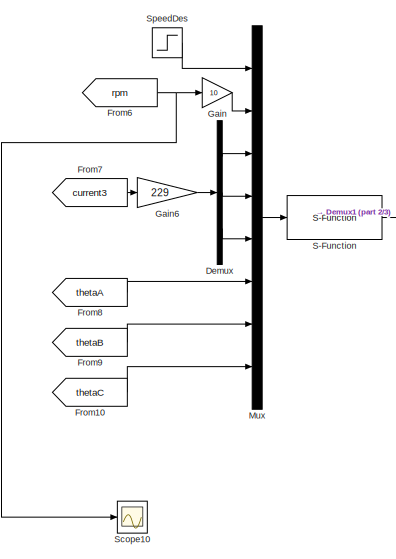
[diagram: root canvas - part 1/3, top left region]
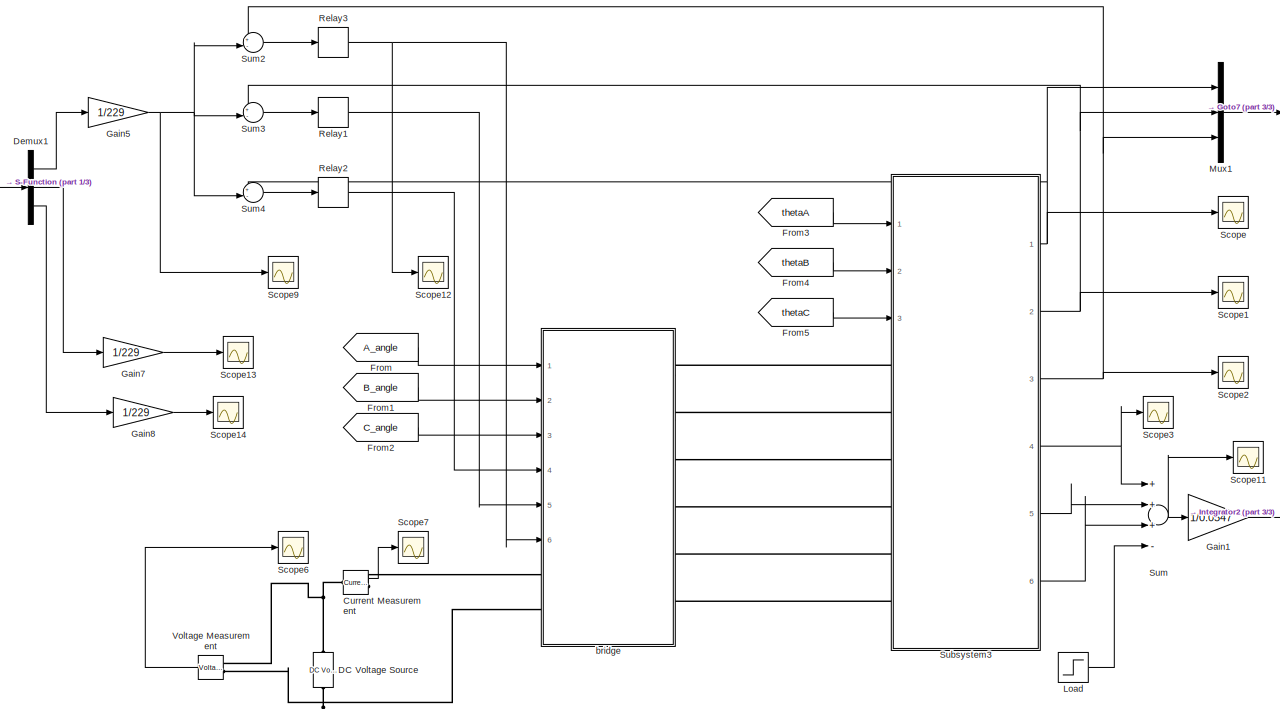
[diagram: root canvas - part 2/3, central region]
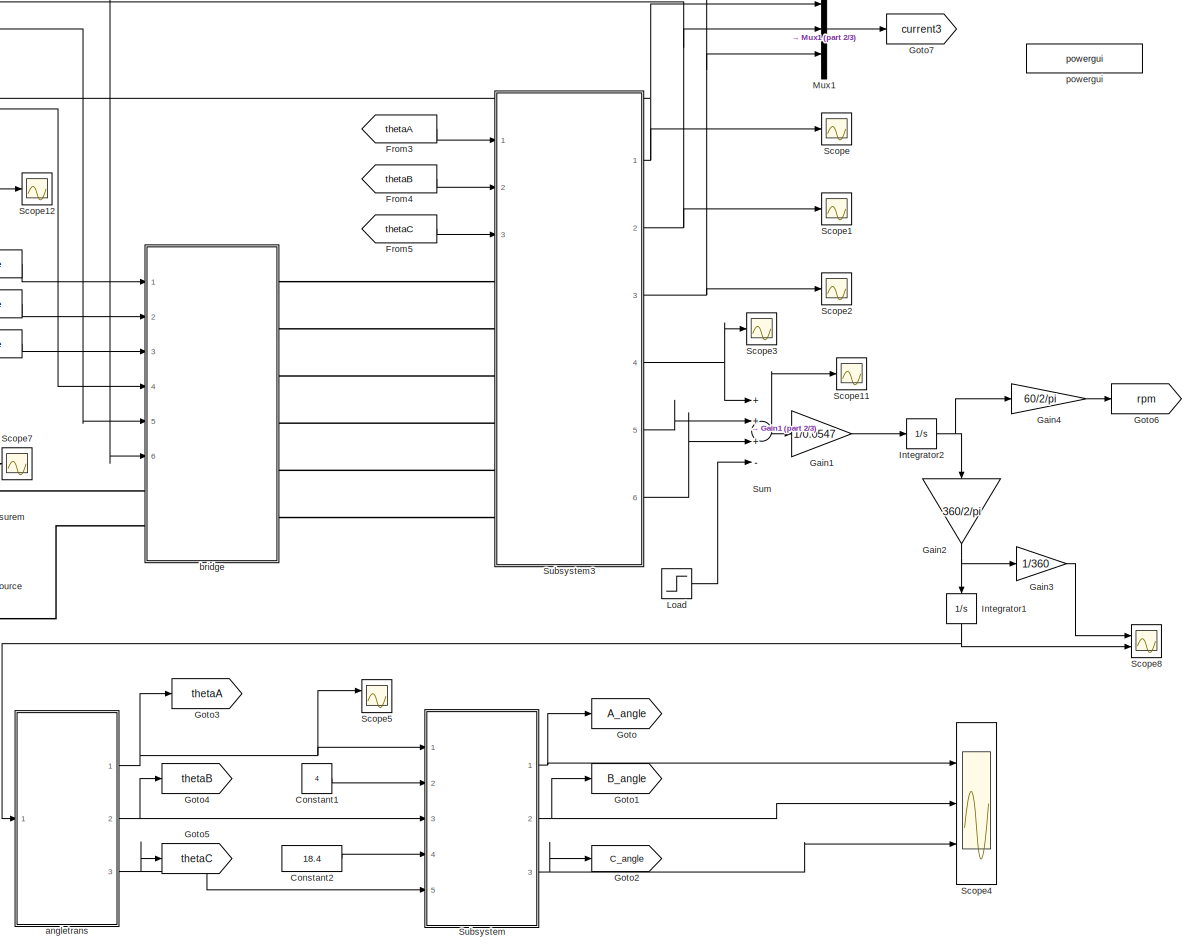
[diagram: root canvas - part 3/3, right side, full height]
MODEL slx_5ed39cbfea9d
KIND model
CONFIG InitFcn = Res=1.5\nL_0=0.001;
BLOCK [Constant] Constant1
  Value = 4
BLOCK [Constant] Constant2
  Value = 18.4
BLOCK [Reference] Current Measurement  REF=powerlib/Measurements/Current Measurement
  OutputType = Complex
  PSBequivalent = 0
  PhasorSimulation = off
  Ports = [0, 1, 0, 0, 0, 1, 1]
  SourceBlock = powerlib/Measurements/Current Measurement
  SourceType = Current Measurement
BLOCK [Reference] DC Voltage Source  REF=powerlib/Electrical
Sources/DC Voltage Source
  Amplitude = 208
  Measurements = None
  Ports = [0, 0, 0, 0, 0, 1, 1]
  SourceBlock = powerlib/Electrical\nSources/DC Voltage Source
  SourceType = DC Voltage Source
BLOCK [Demux] Demux
  DisplayOption = bar
  Outputs = 3
  Ports = [1, 3]
BLOCK [Demux] Demux1
  DisplayOption = bar
  Outputs = 3
  Ports = [1, 3]
BLOCK [From] From
  GotoTag = A_angle
BLOCK [From] From1
  GotoTag = B_angle
BLOCK [From] From10
  GotoTag = thetaC
BLOCK [From] From2
  GotoTag = C_angle
BLOCK [From] From3
  GotoTag = thetaA
BLOCK [From] From4
  GotoTag = thetaB
BLOCK [From] From5
  GotoTag = thetaC
BLOCK [From] From6
  GotoTag = rpm
BLOCK [From] From7
  GotoTag = current3
BLOCK [From] From8
  GotoTag = thetaA
BLOCK [From] From9
  GotoTag = thetaB
BLOCK [Gain] Gain
  Gain = 10
  OutDataTypeStr = Inherit: Inherit via internal rule
  ParamDataTypeStr = Inherit: Inherit via internal rule
  SaturateOnIntegerOverflow = off
BLOCK [Gain] Gain1
  Gain = 1/0.0547
  OutDataTypeStr = Inherit: Inherit via internal rule
  ParamDataTypeStr = Inherit: Inherit via internal rule
  SaturateOnIntegerOverflow = off
BLOCK [Gain] Gain2
  Gain = 360/2/pi
  OutDataTypeStr = Inherit: Inherit via internal rule
  ParamDataTypeStr = Inherit: Inherit via internal rule
  SaturateOnIntegerOverflow = off
BLOCK [Gain] Gain3
  Gain = 1/360
  OutDataTypeStr = Inherit: Inherit via internal rule
  ParamDataTypeStr = Inherit: Inherit via internal rule
  SaturateOnIntegerOverflow = off
BLOCK [Gain] Gain4
  Gain = 60/2/pi
  OutDataTypeStr = Inherit: Inherit via internal rule
  ParamDataTypeStr = Inherit: Inherit via internal rule
  SaturateOnIntegerOverflow = off
BLOCK [Gain] Gain5
  Gain = 1/229
  OutDataTypeStr = Inherit: Inherit via internal rule
  ParamDataTypeStr = Inherit: Inherit via internal rule
  SaturateOnIntegerOverflow = off
BLOCK [Gain] Gain6
  Gain = 229
  OutDataTypeStr = Inherit: Inherit via internal rule
  ParamDataTypeStr = Inherit: Inherit via internal rule
  SaturateOnIntegerOverflow = off
BLOCK [Gain] Gain7
  Gain = 1/229
  OutDataTypeStr = Inherit: Inherit via internal rule
  ParamDataTypeStr = Inherit: Inherit via internal rule
  SaturateOnIntegerOverflow = off
BLOCK [Gain] Gain8
  Gain = 1/229
  OutDataTypeStr = Inherit: Inherit via internal rule
  ParamDataTypeStr = Inherit: Inherit via internal rule
  SaturateOnIntegerOverflow = off
BLOCK [Goto] Goto
  GotoTag = A_angle
BLOCK [Goto] Goto1
  GotoTag = B_angle
BLOCK [Goto] Goto2
  GotoTag = C_angle
BLOCK [Goto] Goto3
  GotoTag = thetaA
BLOCK [Goto] Goto4
  GotoTag = thetaB
BLOCK [Goto] Goto5
  GotoTag = thetaC
BLOCK [Goto] Goto6
  GotoTag = rpm
BLOCK [Goto] Goto7
  GotoTag = current3
BLOCK [Integrator] Integrator1
  InitialCondition = 3.5
  Ports = [1, 1]
BLOCK [Integrator] Integrator2
  InitialCondition = 50
  Ports = [1, 1]
BLOCK [Step] Load
  Before = 1
  SampleTime = 0
  Time = 0.2
BLOCK [Mux] Mux
  DisplayOption = bar
  Inputs = 8
  Ports = [8, 1]
BLOCK [Mux] Mux1
  DisplayOption = bar
  Inputs = 3
  Ports = [3, 1]
BLOCK [Relay] Relay1
  InputProcessing = Elements as channels (sample based)
  OffOutputValue = 1
  OffSwitchValue = -0.001
  OnOutputValue = 0
  OnSwitchValue = 0.1
BLOCK [Relay] Relay2
  InputProcessing = Elements as channels (sample based)
  OffOutputValue = 1
  OffSwitchValue = -0.001
  OnOutputValue = 0
  OnSwitchValue = 0.1
BLOCK [Relay] Relay3
  InputProcessing = Elements as channels (sample based)
  OffOutputValue = 1
  OffSwitchValue = -0.001
  OnOutputValue = 0
  OnSwitchValue = 0.1
BLOCK [S-Function] S-Function
  EnableBusSupport = off
  FunctionName = pifun7a3
  Ports = [1, 1]
BLOCK [Scope] Scope
  DataFormat = StructureWithTime
  Floating = off
  LimitDataPoints = off
  NumInputPorts = 1
  Ports = [1]
  SampleTime = 0
  ShowLegends = off
  TimeRange = 2
  YMax = 2.25
  YMin = 0
BLOCK [Scope] Scope1
  DataFormat = StructureWithTime
  Floating = off
  LimitDataPoints = off
  NumInputPorts = 1
  Ports = [1]
  SampleTime = 0
  SaveName = ScopeData1
  ShowLegends = off
  YMax = 0.0022575
  YMin = 0.0022425
BLOCK [Scope] Scope10
  DataFormat = StructureWithTime
  Floating = off
  LimitDataPoints = off
  NumInputPorts = 1
  Ports = [1]
  SampleInput = on
  SampleTime = 1/9600
  SaveName = speed
  SaveToWorkspace = on
  ShowLegends = off
  TimeRange = 2
  YMax = 602
  YMin = 601.575
BLOCK [Scope] Scope11
  DataFormat = StructureWithTime
  Floating = off
  LimitDataPoints = off
  NumInputPorts = 1
  Ports = [1]
  SampleTime = 0
  SaveName = ScopeData9
  SaveToWorkspace = on
  ShowLegends = off
  TimeRange = 2
  YMax = -0.99985
  YMin = -1.00037
BLOCK [Scope] Scope12
  DataFormat = StructureWithTime
  Floating = off
  LimitDataPoints = off
  NumInputPorts = 1
  Ports = [1]
  SampleTime = 0
  SaveName = ScopeData10
  ShowLegends = off
  TimeRange = 2
  YMax = 1
  YMin = 1
BLOCK [Scope] Scope13
  DataFormat = StructureWithTime
  Floating = off
  LimitDataPoints = off
  NumInputPorts = 1
  Ports = [1]
  SampleInput = on
  SampleTime = 1/9600
  SaveName = speed1
  SaveToWorkspace = on
  ShowLegends = off
  TimeRange = 2
  YMax = 602
  YMin = 601.575
BLOCK [Scope] Scope14
  DataFormat = StructureWithTime
  Floating = off
  LimitDataPoints = off
  NumInputPorts = 1
  Ports = [1]
  SampleInput = on
  SampleTime = 1/9600
  SaveName = speed2
  SaveToWorkspace = on
  ShowLegends = off
  TimeRange = 2
  YMax = 602
  YMin = 601.575
BLOCK [Scope] Scope2
  DataFormat = StructureWithTime
  Floating = off
  LimitDataPoints = off
  NumInputPorts = 1
  Ports = [1]
  SampleTime = 0
  SaveName = ScopeData2
  ShowLegends = off
  YMax = 1.75
  YMin = 0
BLOCK [Scope] Scope3
  DataFormat = StructureWithTime
  Floating = off
  LimitDataPoints = off
  NumInputPorts = 1
  Ports = [1]
  SampleTime = 0
  SaveName = ScopeData3
  SaveToWorkspace = on
  ShowLegends = off
  TimeRange = 2
  YMax = 0
  YMin = -4.5e-06
BLOCK [Scope] Scope4
  DataFormat = StructureWithTime
  Floating = off
  LimitDataPoints = off
  NumInputPorts = 3
  Ports = [3]
  SampleTime = 0
  SaveName = ScopeData5
  ShowLegends = off
  TimeRange = 0.0001268631901574406
  YMax = 1.05~1~1
  YMin = 0.95~-1~-1
  ZoomMode = xonly
BLOCK [Scope] Scope5
  DataFormat = StructureWithTime
  Floating = off
  LimitDataPoints = off
  NumInputPorts = 2
  Ports = [2]
  SampleTime = 0
  SaveName = ScopeData7
  SaveToWorkspace = on
  ShowLegends = off
  YMax = 45~1
  YMin = 0~-1
  ZoomMode = xonly
BLOCK [Scope] Scope6
  DataFormat = StructureWithTime
  Floating = off
  LimitDataPoints = off
  NumInputPorts = 1
  Ports = [1]
  SampleTime = 0
  SaveName = ScopeData8
  ShowLegends = off
  YMax = 41.5
  YMin = 39
BLOCK [Scope] Scope7
  DataFormat = StructureWithTime
  Floating = off
  LimitDataPoints = off
  NumInputPorts = 1
  Ports = [1]
  SampleTime = 0
  SaveName = ScopeData12
  ShowLegends = off
  YMax = 2
  YMin = -1.75
BLOCK [Scope] Scope8
  DataFormat = StructureWithTime
  Floating = off
  LimitDataPoints = off
  NumInputPorts = 2
  Ports = [2]
  SampleTime = 0
  SaveName = ScopeData16
  SaveToWorkspace = on
  ShowLegends = off
  YMax = 1.65~13.5
  YMin = 1.2~10
BLOCK [Scope] Scope9
  DataFormat = StructureWithTime
  Floating = off
  LimitDataPoints = off
  NumInputPorts = 1
  Ports = [1]
  SampleTime = 0
  SaveName = ScopeData4
  ShowLegends = off
  TimeRange = 2
  YMax = 0.85
  YMin = 0.755
BLOCK [Step] SpeedDes
  After = 0
  Before = 6000
  SampleTime = 0
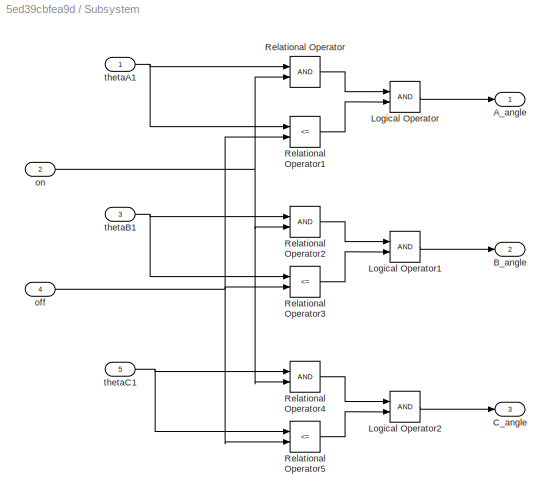
BLOCK [SubSystem] Subsystem
  Ports = [5, 3]
  RequestExecContextInheritance = off
BLOCK [Outport] Subsystem/A_angle
  IconDisplay = Port number
BLOCK [Outport] Subsystem/B_angle
  IconDisplay = Port number
  Port = 2
BLOCK [Outport] Subsystem/C_angle
  IconDisplay = Port number
  Port = 3
BLOCK [Logic] Subsystem/Logical Operator
  AllPortsSameDT = off
  OutDataTypeStr = boolean
  Ports = [2, 1]
BLOCK [Logic] Subsystem/Logical Operator1
  AllPortsSameDT = off
  OutDataTypeStr = boolean
  Ports = [2, 1]
BLOCK [Logic] Subsystem/Logical Operator2
  AllPortsSameDT = off
  OutDataTypeStr = boolean
  Ports = [2, 1]
BLOCK [RelationalOperator] Subsystem/Relational Operator
  InputSameDT = off
  OutDataTypeStr = boolean
  Ports = [2, 1]
BLOCK [RelationalOperator] Subsystem/Relational Operator1
  InputSameDT = off
  Operator = <=
  OutDataTypeStr = boolean
  Ports = [2, 1]
BLOCK [RelationalOperator] Subsystem/Relational Operator2
  InputSameDT = off
  OutDataTypeStr = boolean
  Ports = [2, 1]
BLOCK [RelationalOperator] Subsystem/Relational Operator3
  InputSameDT = off
  Operator = <=
  OutDataTypeStr = boolean
  Ports = [2, 1]
BLOCK [RelationalOperator] Subsystem/Relational Operator4
  InputSameDT = off
  OutDataTypeStr = boolean
  Ports = [2, 1]
BLOCK [RelationalOperator] Subsystem/Relational Operator5
  InputSameDT = off
  Operator = <=
  OutDataTypeStr = boolean
  Ports = [2, 1]
BLOCK [Inport] Subsystem/off
  IconDisplay = Port number
  Port = 4
BLOCK [Inport] Subsystem/on
  IconDisplay = Port number
  Port = 2
BLOCK [Inport] Subsystem/thetaA1
  IconDisplay = Port number
BLOCK [Inport] Subsystem/thetaB1
  IconDisplay = Port number
  Port = 3
BLOCK [Inport] Subsystem/thetaC1
  IconDisplay = Port number
  Port = 5
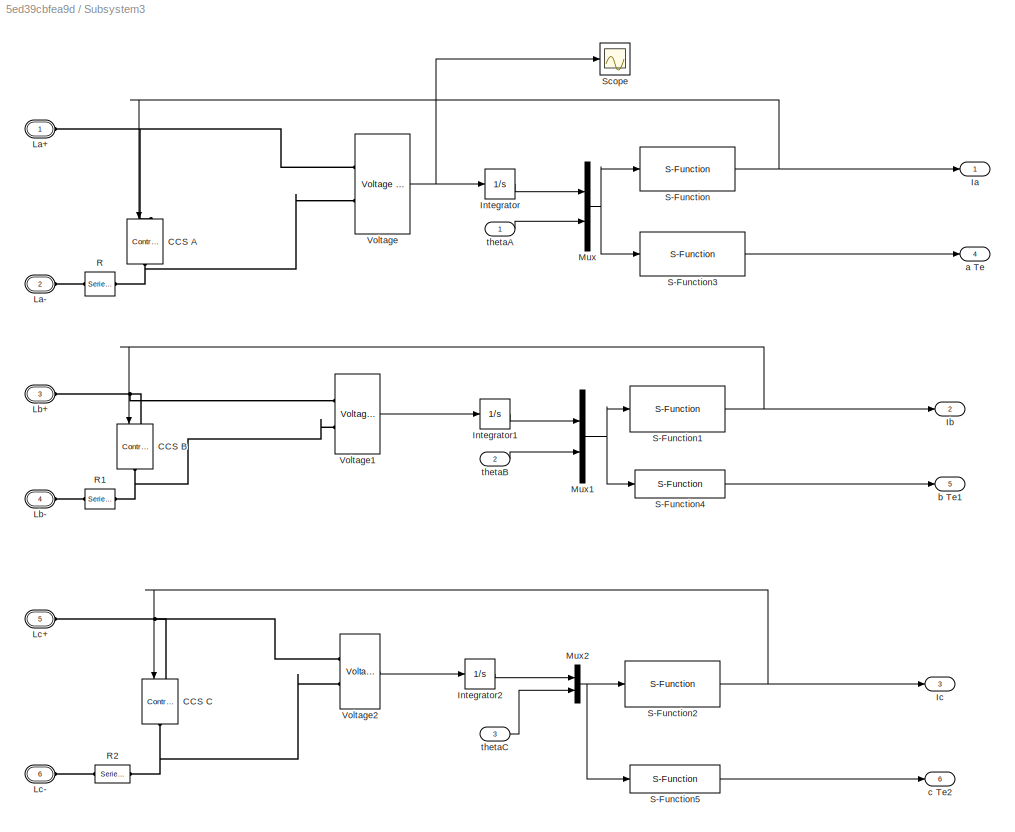
BLOCK [SubSystem] Subsystem3
  Ports = [3, 6, 0, 0, 0, 6]
  RequestExecContextInheritance = off
BLOCK [Reference] Subsystem3/CCS A  REF=powerlib/Electrical
Sources/Controlled Current Source
  Amplitude = 0
  Frequency = 0
  Initialize = on
  Measurements = None
  Phase = 0
  Ports = [1, 0, 0, 0, 0, 1, 1]
  SourceBlock = powerlib/Electrical\nSources/Controlled Current Source
  SourceType = Controlled Current Source
  Source_Type = AC
BLOCK [Reference] Subsystem3/CCS B  REF=powerlib/Electrical
Sources/Controlled Current Source
  Amplitude = 0
  Frequency = 0
  Initialize = on
  Measurements = None
  Phase = 0
  Ports = [1, 0, 0, 0, 0, 1, 1]
  SourceBlock = powerlib/Electrical\nSources/Controlled Current Source
  SourceType = Controlled Current Source
  Source_Type = AC
BLOCK [Reference] Subsystem3/CCS C  REF=powerlib/Electrical
Sources/Controlled Current Source
  Amplitude = 0
  Frequency = 0
  Initialize = on
  Measurements = None
  Phase = 0
  Ports = [1, 0, 0, 0, 0, 1, 1]
  SourceBlock = powerlib/Electrical\nSources/Controlled Current Source
  SourceType = Controlled Current Source
  Source_Type = AC
BLOCK [Outport] Subsystem3/Ia
  IconDisplay = Port number
BLOCK [Outport] Subsystem3/Ib
  IconDisplay = Port number
  Port = 2
BLOCK [Outport] Subsystem3/Ic
  IconDisplay = Port number
  Port = 3
BLOCK [Integrator] Subsystem3/Integrator
  LimitOutput = on
  LowerSaturationLimit = 0
  Ports = [1, 1]
BLOCK [Integrator] Subsystem3/Integrator1
  LimitOutput = on
  LowerSaturationLimit = 0
  Ports = [1, 1]
BLOCK [Integrator] Subsystem3/Integrator2
  LimitOutput = on
  LowerSaturationLimit = 0
  Ports = [1, 1]
BLOCK [PMIOPort] Subsystem3/La+
  Port = 1
  Side = Left
  Tag = PMCPort
BLOCK [PMIOPort] Subsystem3/La-
  Port = 2
  Side = Left
  Tag = PMCPort
BLOCK [PMIOPort] Subsystem3/Lb+
  Port = 3
  Side = Left
  Tag = PMCPort
BLOCK [PMIOPort] Subsystem3/Lb-
  Port = 4
  Side = Left
  Tag = PMCPort
BLOCK [PMIOPort] Subsystem3/Lc+
  Port = 5
  Side = Left
  Tag = PMCPort
BLOCK [PMIOPort] Subsystem3/Lc-
  Port = 6
  Side = Left
  Tag = PMCPort
BLOCK [Mux] Subsystem3/Mux
  DisplayOption = bar
  Inputs = 2
  Ports = [2, 1]
BLOCK [Mux] Subsystem3/Mux1
  DisplayOption = bar
  Inputs = 2
  Ports = [2, 1]
BLOCK [Mux] Subsystem3/Mux2
  DisplayOption = bar
  Inputs = 2
  Ports = [2, 1]
BLOCK [Reference] Subsystem3/R  REF=powerlib/Elements/Series RLC Branch
  BranchType = R
  Capacitance = 1.0
  Inductance = L_0
  InitialCurrent = 0
  InitialVoltage = 0
  LConnTagsString = __new0
  Measurements = None
  Ports = [0, 0, 0, 0, 0, 1, 1]
  RConnTagsString = __new0
  Resistance = Res
  SetiL0 = off
  Setx0 = off
  SourceBlock = powerlib/Elements/Series RLC Branch
  SourceType = Series RLC Branch
BLOCK [Reference] Subsystem3/R1  REF=powerlib/Elements/Series RLC Branch
  BranchType = R
  Capacitance = 1.0
  Inductance = L_0
  InitialCurrent = 0
  InitialVoltage = 0
  LConnTagsString = __new0
  Measurements = None
  Ports = [0, 0, 0, 0, 0, 1, 1]
  RConnTagsString = __new0
  Resistance = Res
  SetiL0 = off
  Setx0 = off
  SourceBlock = powerlib/Elements/Series RLC Branch
  SourceType = Series RLC Branch
BLOCK [Reference] Subsystem3/R2  REF=powerlib/Elements/Series RLC Branch
  BranchType = R
  Capacitance = 1.0
  Inductance = L_0
  InitialCurrent = 0
  InitialVoltage = 0
  LConnTagsString = __new0
  Measurements = None
  Ports = [0, 0, 0, 0, 0, 1, 1]
  RConnTagsString = __new0
  Resistance = Res
  SetiL0 = off
  Setx0 = off
  SourceBlock = powerlib/Elements/Series RLC Branch
  SourceType = Series RLC Branch
BLOCK [S-Function] Subsystem3/S-Function
  EnableBusSupport = off
  FunctionName = my_sfunction7a
  Ports = [1, 1]
BLOCK [S-Function] Subsystem3/S-Function1
  EnableBusSupport = off
  FunctionName = my_sfunction7a
  Ports = [1, 1]
BLOCK [S-Function] Subsystem3/S-Function2
  EnableBusSupport = off
  FunctionName = my_sfunction7a
  Ports = [1, 1]
BLOCK [S-Function] Subsystem3/S-Function3
  EnableBusSupport = off
  FunctionName = my_sfunction7ate
  Ports = [1, 1]
BLOCK [S-Function] Subsystem3/S-Function4
  EnableBusSupport = off
  FunctionName = my_sfunction7ate
  Ports = [1, 1]
BLOCK [S-Function] Subsystem3/S-Function5
  EnableBusSupport = off
  FunctionName = my_sfunction7ate
  Ports = [1, 1]
BLOCK [Scope] Subsystem3/Scope
  DataFormat = StructureWithTime
  Floating = off
  LimitDataPoints = off
  NumInputPorts = 1
  Ports = [1]
  SampleTime = 0
  SaveName = ScopeData11
  ShowLegends = off
  TimeRange = 2
  YMax = 0.001065
  YMin = 0.00099
BLOCK [Reference] Subsystem3/Voltage  REF=powerlib/Measurements/Voltage Measurement
  OutputType = Complex
  PSBequivalent = 0
  PhasorSimulation = off
  Ports = [0, 1, 0, 0, 0, 2]
  SourceBlock = powerlib/Measurements/Voltage Measurement
  SourceType = Voltage Measurement
BLOCK [Reference] Subsystem3/Voltage1  REF=powerlib/Measurements/Voltage Measurement
  OutputType = Complex
  PSBequivalent = 0
  PhasorSimulation = off
  Ports = [0, 1, 0, 0, 0, 2]
  SourceBlock = powerlib/Measurements/Voltage Measurement
  SourceType = Voltage Measurement
BLOCK [Reference] Subsystem3/Voltage2  REF=powerlib/Measurements/Voltage Measurement
  OutputType = Complex
  PSBequivalent = 0
  PhasorSimulation = off
  Ports = [0, 1, 0, 0, 0, 2]
  SourceBlock = powerlib/Measurements/Voltage Measurement
  SourceType = Voltage Measurement
BLOCK [Outport] Subsystem3/a Te
  IconDisplay = Port number
  Port = 4
BLOCK [Outport] Subsystem3/b Te1
  IconDisplay = Port number
  Port = 5
BLOCK [Outport] Subsystem3/c Te2
  IconDisplay = Port number
  Port = 6
BLOCK [Inport] Subsystem3/thetaA
  IconDisplay = Port number
BLOCK [Inport] Subsystem3/thetaB
  IconDisplay = Port number
  Port = 2
BLOCK [Inport] Subsystem3/thetaC
  IconDisplay = Port number
  Port = 3
BLOCK [Sum] Sum
  InputSameDT = off
  Inputs = +++-
  OutDataTypeStr = Inherit: Inherit via internal rule
  Ports = [4, 1]
  SaturateOnIntegerOverflow = off
BLOCK [Sum] Sum2
  IconShape = round
  InputSameDT = off
  Inputs = +-|
  OutDataTypeStr = Inherit: Inherit via internal rule
  Ports = [2, 1]
  SaturateOnIntegerOverflow = off
BLOCK [Sum] Sum3
  IconShape = round
  InputSameDT = off
  Inputs = +-|
  OutDataTypeStr = Inherit: Inherit via internal rule
  Ports = [2, 1]
  SaturateOnIntegerOverflow = off
BLOCK [Sum] Sum4
  IconShape = round
  InputSameDT = off
  Inputs = +-|
  OutDataTypeStr = Inherit: Inherit via internal rule
  Ports = [2, 1]
  SaturateOnIntegerOverflow = off
BLOCK [Reference] Voltage Measurement  REF=powerlib/Measurements/Voltage Measurement
  OutputType = Complex
  PSBequivalent = 0
  PhasorSimulation = off
  Ports = [0, 1, 0, 0, 0, 2]
  SourceBlock = powerlib/Measurements/Voltage Measurement
  SourceType = Voltage Measurement
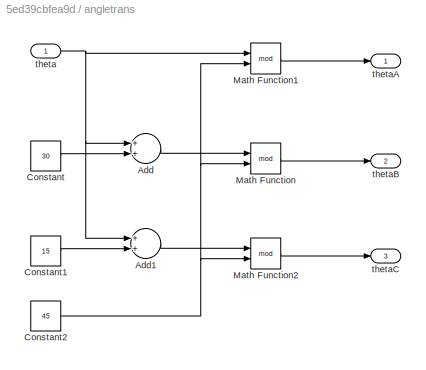
BLOCK [SubSystem] angletrans
  Ports = [1, 3]
  RequestExecContextInheritance = off
BLOCK [Sum] angletrans/Add
  InputSameDT = off
  OutDataTypeStr = Inherit: Inherit via internal rule
  Ports = [2, 1]
  SaturateOnIntegerOverflow = off
BLOCK [Sum] angletrans/Add1
  InputSameDT = off
  OutDataTypeStr = Inherit: Inherit via internal rule
  Ports = [2, 1]
  SaturateOnIntegerOverflow = off
BLOCK [Constant] angletrans/Constant
  Value = 30
BLOCK [Constant] angletrans/Constant1
  Value = 15
BLOCK [Constant] angletrans/Constant2
  Value = 45
BLOCK [Math] angletrans/Math Function
  Operator = mod
  Ports = [2, 1]
BLOCK [Math] angletrans/Math Function1
  Operator = mod
  Ports = [2, 1]
BLOCK [Math] angletrans/Math Function2
  Operator = mod
  Ports = [2, 1]
BLOCK [Inport] angletrans/theta
  IconDisplay = Port number
BLOCK [Outport] angletrans/thetaA
  IconDisplay = Port number
BLOCK [Outport] angletrans/thetaB
  IconDisplay = Port number
  Port = 2
BLOCK [Outport] angletrans/thetaC
  IconDisplay = Port number
  Port = 3
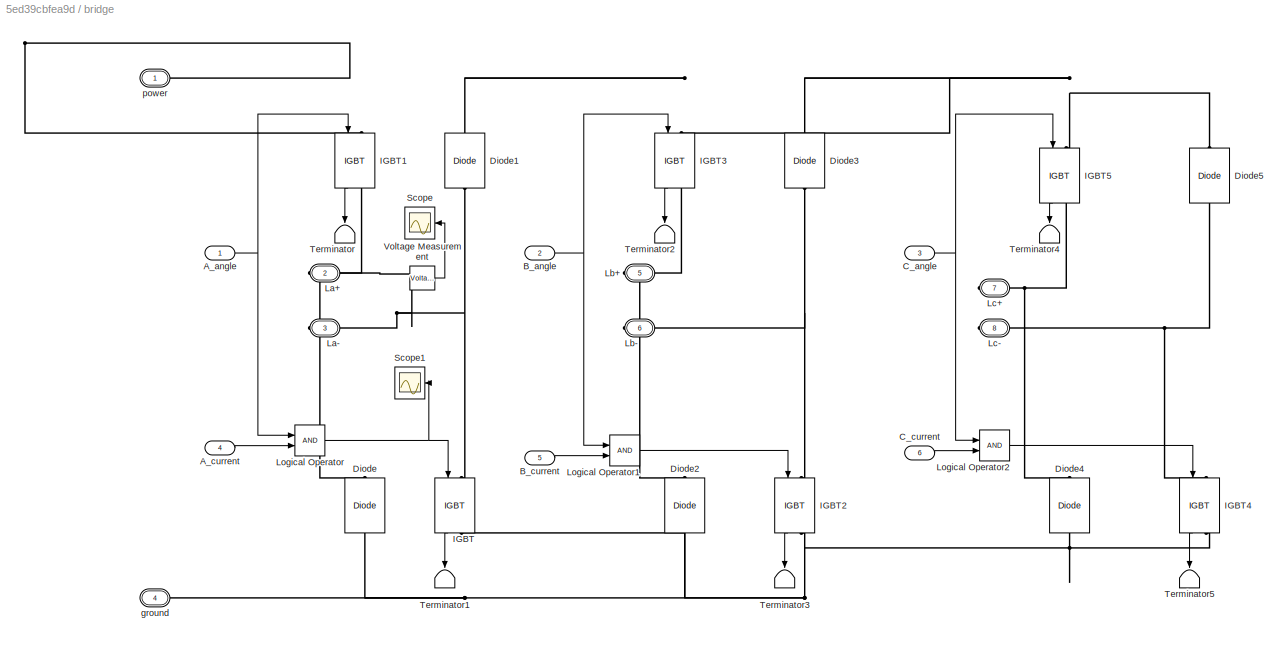
BLOCK [SubSystem] bridge
  Ports = [6, 0, 0, 0, 0, 2, 6]
  RequestExecContextInheritance = off
BLOCK [Inport] bridge/A_angle
  IconDisplay = Port number
BLOCK [Inport] bridge/A_current
  IconDisplay = Port number
  Port = 4
BLOCK [Inport] bridge/B_angle
  IconDisplay = Port number
  Port = 2
BLOCK [Inport] bridge/B_current
  IconDisplay = Port number
  Port = 5
BLOCK [Inport] bridge/C_angle
  IconDisplay = Port number
  Port = 3
BLOCK [Inport] bridge/C_current
  IconDisplay = Port number
  Port = 6
BLOCK [Reference] bridge/Diode  REF=powerlib/Power
Electronics/Diode
  Cs = 250e-9
  IC = 0
  Lon = 0
  Measurements = off
  Ports = [0, 0, 0, 0, 0, 1, 1]
  Ron = 0.001
  Rs = 500
  SourceBlock = powerlib/Power\nElectronics/Diode
  SourceType = Diode
  UseSnubber = off
  Vf = 0.8
BLOCK [Reference] bridge/Diode1  REF=powerlib/Power
Electronics/Diode
  Cs = 250e-9
  IC = 0
  Lon = 0
  Measurements = off
  Ports = [0, 0, 0, 0, 0, 1, 1]
  Ron = 0.001
  Rs = 500
  SourceBlock = powerlib/Power\nElectronics/Diode
  SourceType = Diode
  UseSnubber = off
  Vf = 0.8
BLOCK [Reference] bridge/Diode2  REF=powerlib/Power
Electronics/Diode
  Cs = 250e-9
  IC = 0
  Lon = 0
  Measurements = off
  Ports = [0, 0, 0, 0, 0, 1, 1]
  Ron = 0.001
  Rs = 500
  SourceBlock = powerlib/Power\nElectronics/Diode
  SourceType = Diode
  UseSnubber = off
  Vf = 0.8
BLOCK [Reference] bridge/Diode3  REF=powerlib/Power
Electronics/Diode
  Cs = 250e-9
  IC = 0
  Lon = 0
  Measurements = off
  Ports = [0, 0, 0, 0, 0, 1, 1]
  Ron = 0.001
  Rs = 500
  SourceBlock = powerlib/Power\nElectronics/Diode
  SourceType = Diode
  UseSnubber = off
  Vf = 0.8
BLOCK [Reference] bridge/Diode4  REF=powerlib/Power
Electronics/Diode
  Cs = 250e-9
  IC = 0
  Lon = 0
  Measurements = off
  Ports = [0, 0, 0, 0, 0, 1, 1]
  Ron = 0.001
  Rs = 500
  SourceBlock = powerlib/Power\nElectronics/Diode
  SourceType = Diode
  UseSnubber = off
  Vf = 0.8
BLOCK [Reference] bridge/Diode5  REF=powerlib/Power
Electronics/Diode
  Cs = 250e-9
  IC = 0
  Lon = 0
  Measurements = off
  Ports = [0, 0, 0, 0, 0, 1, 1]
  Ron = 0.001
  Rs = 500
  SourceBlock = powerlib/Power\nElectronics/Diode
  SourceType = Diode
  UseSnubber = off
  Vf = 0.8
BLOCK [Reference] bridge/IGBT  REF=powerlib/Power
Electronics/IGBT
  Cs = inf
  IC = 0
  Lon = 0
  Measurements = on
  Ports = [1, 1, 0, 0, 0, 1, 1]
  Ron = 0.001
  Rs = 1e5
  SourceBlock = powerlib/Power\nElectronics/IGBT
  SourceType = IGBT
  Tf = 1e-6
  Tt = 2e-6
  Vf = 1
BLOCK [Reference] bridge/IGBT1  REF=powerlib/Power
Electronics/IGBT
  Cs = inf
  IC = 0
  Lon = 0
  Measurements = on
  Ports = [1, 1, 0, 0, 0, 1, 1]
  Ron = 0.001
  Rs = 1e5
  SourceBlock = powerlib/Power\nElectronics/IGBT
  SourceType = IGBT
  Tf = 1e-6
  Tt = 2e-6
  Vf = 1
BLOCK [Reference] bridge/IGBT2  REF=powerlib/Power
Electronics/IGBT
  Cs = inf
  IC = 0
  Lon = 0
  Measurements = on
  Ports = [1, 1, 0, 0, 0, 1, 1]
  Ron = 0.001
  Rs = 1e5
  SourceBlock = powerlib/Power\nElectronics/IGBT
  SourceType = IGBT
  Tf = 1e-6
  Tt = 2e-6
  Vf = 1
BLOCK [Reference] bridge/IGBT3  REF=powerlib/Power
Electronics/IGBT
  Cs = inf
  IC = 0
  Lon = 0
  Measurements = on
  Ports = [1, 1, 0, 0, 0, 1, 1]
  Ron = 0.001
  Rs = 1e5
  SourceBlock = powerlib/Power\nElectronics/IGBT
  SourceType = IGBT
  Tf = 1e-6
  Tt = 2e-6
  Vf = 1
BLOCK [Reference] bridge/IGBT4  REF=powerlib/Power
Electronics/IGBT
  Cs = inf
  IC = 0
  Lon = 0
  Measurements = on
  Ports = [1, 1, 0, 0, 0, 1, 1]
  Ron = 0.001
  Rs = 1e5
  SourceBlock = powerlib/Power\nElectronics/IGBT
  SourceType = IGBT
  Tf = 1e-6
  Tt = 2e-6
  Vf = 1
BLOCK [Reference] bridge/IGBT5  REF=powerlib/Power
Electronics/IGBT
  Cs = inf
  IC = 0
  Lon = 0
  Measurements = on
  Ports = [1, 1, 0, 0, 0, 1, 1]
  Ron = 0.001
  Rs = 1e5
  SourceBlock = powerlib/Power\nElectronics/IGBT
  SourceType = IGBT
  Tf = 1e-6
  Tt = 2e-6
  Vf = 1
BLOCK [PMIOPort] bridge/La+
  Port = 2
  Side = Right
  Tag = PMCPort
BLOCK [PMIOPort] bridge/La-
  Port = 3
  Side = Right
  Tag = PMCPort
BLOCK [PMIOPort] bridge/Lb+
  Port = 5
  Side = Right
  Tag = PMCPort
BLOCK [PMIOPort] bridge/Lb-
  Port = 6
  Side = Right
  Tag = PMCPort
BLOCK [PMIOPort] bridge/Lc+
  Port = 7
  Side = Right
  Tag = PMCPort
BLOCK [PMIOPort] bridge/Lc-
  Port = 8
  Side = Right
  Tag = PMCPort
BLOCK [Logic] bridge/Logical Operator
  AllPortsSameDT = off
  OutDataTypeStr = boolean
  Ports = [2, 1]
BLOCK [Logic] bridge/Logical Operator1
  AllPortsSameDT = off
  OutDataTypeStr = boolean
  Ports = [2, 1]
BLOCK [Logic] bridge/Logical Operator2
  AllPortsSameDT = off
  OutDataTypeStr = boolean
  Ports = [2, 1]
BLOCK [Scope] bridge/Scope
  DataFormat = StructureWithTime
  Floating = off
  NumInputPorts = 1
  Ports = [1]
  SampleTime = 0
  SaveName = ScopeData6
  ShowLegends = off
  YMax = 250
  YMin = -250
BLOCK [Scope] bridge/Scope1
  DataFormat = StructureWithTime
  Floating = off
  NumInputPorts = 1
  Ports = [1]
  SampleTime = 0
  SaveName = ScopeData13
  ShowLegends = off
  YMax = 57.2
  YMin = 57.14
BLOCK [Terminator] bridge/Terminator
BLOCK [Terminator] bridge/Terminator1
BLOCK [Terminator] bridge/Terminator2
BLOCK [Terminator] bridge/Terminator3
BLOCK [Terminator] bridge/Terminator4
BLOCK [Terminator] bridge/Terminator5
BLOCK [Reference] bridge/Voltage Measurement  REF=powerlib/Measurements/Voltage Measurement
  OutputType = Complex
  PSBequivalent = 0
  PhasorSimulation = off
  Ports = [0, 1, 0, 0, 0, 2]
  SourceBlock = powerlib/Measurements/Voltage Measurement
  SourceType = Voltage Measurement
BLOCK [PMIOPort] bridge/ground
  Port = 4
  Side = Left
  Tag = PMCPort
BLOCK [PMIOPort] bridge/power
  Port = 1
  Side = Left
  Tag = PMCPort
BLOCK [Reference] powergui  REF=powerlib/powergui
  DisableRonSwitches = off
  DisableSnubberDevices = off
  DisableVfSwitches = off
  DisplayEquations = off
  DisplayStyle = 1
  EnableUseOfTLC = off
  ErrMax = 1e-4
  Frange = [0:2:500]
  FreqAxis = off
  FunctionMessages = off
  HookPort = off
  Interpol = off
  Iterations = 50
  MaxFrequency = 1000
  Pbase = 100e6
  Ports = []
  Priority = 1
  ResistiveCurrentMeasurement = off
  RestoreLinks = warning
  RmsSteady = 1
  SPID = off
  SampleTime = 50e-6
  ShowGrid = off
  SolverType = Tustin
  SourceBlock = powerlib/powergui
  SourceType = PSB option menu block
  StartTime = 0.0
  SwTol = 0
  Ts = 0
  UnitsV = kV
  UnitsW = MW
  UserDataPersistent = on
  Xlog = on
  Ylog = off
  ZoomFFT = on
  cycles = 1
  display = off
  echomessages = off
  frequency = 60
  frequencyindice = 0
  frequencyindicesteady = 1
  fundamental = 60
  methode = off
  save = off
  structure = 0
  variable = ZData
  x0status = blocks
LINE Constant1:1 -> Subsystem:2
LINE Constant2:1 -> Subsystem:4
LINE Current Measurement:1 -> Scope7:1
LINE Demux1:1 -> Gain5:1
LINE Demux1:2 -> Gain7:1
LINE Demux1:3 -> Gain8:1
LINE Demux:1 -> Mux:3
LINE Demux:2 -> Mux:4
LINE Demux:3 -> Mux:5
LINE From10:1 -> Mux:8
LINE From1:1 -> bridge:2
LINE From2:1 -> bridge:3
LINE From3:1 -> Subsystem3:1
LINE From4:1 -> Subsystem3:2
LINE From5:1 -> Subsystem3:3
NET From6:1 -> Gain:1, Scope10:1
LINE From7:1 -> Gain6:1
LINE From8:1 -> Mux:6
LINE From9:1 -> Mux:7
LINE From:1 -> bridge:1
LINE Gain1:1 -> Integrator2:1
NET Gain2:1 -> Gain3:1, Integrator1:1
LINE Gain3:1 -> Scope8:1
LINE Gain4:1 -> Goto6:1
NET Gain5:1 -> Scope9:1, Sum2:2, Sum3:2, Sum4:2
LINE Gain6:1 -> Demux:1
LINE Gain7:1 -> Scope13:1
LINE Gain8:1 -> Scope14:1
LINE Gain:1 -> Mux:2
NET Integrator1:1 -> Scope8:2, angletrans:1
NET Integrator2:1 -> Gain2:1, Gain4:1
LINE Load:1 -> Sum:4
LINE Mux1:1 -> Goto7:1
LINE Mux:1 -> S-Function:1
LINE Relay1:1 -> bridge:5
LINE Relay2:1 -> bridge:4
NET Relay3:1 -> Scope12:1, bridge:6
LINE S-Function:1 -> Demux1:1
LINE SpeedDes:1 -> Mux:1
LINE Subsystem/Logical Operator1:1 -> Subsystem/B_angle:1
LINE Subsystem/Logical Operator2:1 -> Subsystem/C_angle:1
LINE Subsystem/Logical Operator:1 -> Subsystem/A_angle:1
LINE Subsystem/Relational Operator1:1 -> Subsystem/Logical Operator:2
LINE Subsystem/Relational Operator2:1 -> Subsystem/Logical Operator1:1
LINE Subsystem/Relational Operator3:1 -> Subsystem/Logical Operator1:2
LINE Subsystem/Relational Operator4:1 -> Subsystem/Logical Operator2:1
LINE Subsystem/Relational Operator5:1 -> Subsystem/Logical Operator2:2
LINE Subsystem/Relational Operator:1 -> Subsystem/Logical Operator:1
NET Subsystem/off:1 -> Subsystem/Relational Operator1:2, Subsystem/Relational Operator3:2, Subsystem/Relational Operator5:2
NET Subsystem/on:1 -> Subsystem/Relational Operator2:2, Subsystem/Relational Operator4:2, Subsystem/Relational Operator:2
NET Subsystem/thetaA1:1 -> Subsystem/Relational Operator1:1, Subsystem/Relational Operator:1
NET Subsystem/thetaB1:1 -> Subsystem/Relational Operator2:1, Subsystem/Relational Operator3:1
NET Subsystem/thetaC1:1 -> Subsystem/Relational Operator4:1, Subsystem/Relational Operator5:1
LINE Subsystem3/Integrator1:1 -> Subsystem3/Mux1:1
LINE Subsystem3/Integrator2:1 -> Subsystem3/Mux2:1
LINE Subsystem3/Integrator:1 -> Subsystem3/Mux:1
NET Subsystem3/Mux1:1 -> Subsystem3/S-Function1:1, Subsystem3/S-Function4:1
NET Subsystem3/Mux2:1 -> Subsystem3/S-Function2:1, Subsystem3/S-Function5:1
NET Subsystem3/Mux:1 -> Subsystem3/S-Function3:1, Subsystem3/S-Function:1
NET Subsystem3/S-Function1:1 -> Subsystem3/CCS B:1, Subsystem3/Ib:1
NET Subsystem3/S-Function2:1 -> Subsystem3/CCS C:1, Subsystem3/Ic:1
LINE Subsystem3/S-Function3:1 -> Subsystem3/a Te:1
LINE Subsystem3/S-Function4:1 -> Subsystem3/b Te1:1
LINE Subsystem3/S-Function5:1 -> Subsystem3/c Te2:1
NET Subsystem3/S-Function:1 -> Subsystem3/CCS A:1, Subsystem3/Ia:1
LINE Subsystem3/Voltage1:1 -> Subsystem3/Integrator1:1
LINE Subsystem3/Voltage2:1 -> Subsystem3/Integrator2:1
NET Subsystem3/Voltage:1 -> Subsystem3/Integrator:1, Subsystem3/Scope:1
LINE Subsystem3/thetaA:1 -> Subsystem3/Mux:2
LINE Subsystem3/thetaB:1 -> Subsystem3/Mux1:2
LINE Subsystem3/thetaC:1 -> Subsystem3/Mux2:2
NET Subsystem3:1 -> Mux1:1, Scope:1, Sum4:1
NET Subsystem3:2 -> Mux1:2, Scope1:1, Sum3:1
NET Subsystem3:3 -> Mux1:3, Scope2:1, Sum2:1
NET Subsystem3:4 -> Scope3:1, Sum:1
LINE Subsystem3:5 -> Sum:2
LINE Subsystem3:6 -> Sum:3
NET Subsystem:1 -> Goto:1, Scope4:1
NET Subsystem:2 -> Goto1:1, Scope4:2
NET Subsystem:3 -> Goto2:1, Scope4:3
LINE Sum2:1 -> Relay3:1
LINE Sum3:1 -> Relay1:1
LINE Sum4:1 -> Relay2:1
NET Sum:1 -> Gain1:1, Scope11:1
LINE Voltage Measurement:1 -> Scope6:1
LINE angletrans/Add1:1 -> angletrans/Math Function2:1
LINE angletrans/Add:1 -> angletrans/Math Function:1
LINE angletrans/Constant1:1 -> angletrans/Add1:2
NET angletrans/Constant2:1 -> angletrans/Math Function1:2, angletrans/Math Function2:2, angletrans/Math Function:2
LINE angletrans/Constant:1 -> angletrans/Add:2
LINE angletrans/Math Function1:1 -> angletrans/thetaA:1
LINE angletrans/Math Function2:1 -> angletrans/thetaC:1
LINE angletrans/Math Function:1 -> angletrans/thetaB:1
NET angletrans/theta:1 -> angletrans/Add1:1, angletrans/Add:1, angletrans/Math Function1:1
NET angletrans:1 -> Goto3:1, Scope5:1, Subsystem:1
NET angletrans:2 -> Goto4:1, Subsystem:3
NET angletrans:3 -> Goto5:1, Subsystem:5
NET bridge/A_angle:1 -> bridge/IGBT1:1, bridge/Logical Operator:1
LINE bridge/A_current:1 -> bridge/Logical Operator:2
NET bridge/B_angle:1 -> bridge/IGBT3:1, bridge/Logical Operator1:1
LINE bridge/B_current:1 -> bridge/Logical Operator1:2
NET bridge/C_angle:1 -> bridge/IGBT5:1, bridge/Logical Operator2:1
LINE bridge/C_current:1 -> bridge/Logical Operator2:2
LINE bridge/IGBT1:1 -> bridge/Terminator:1
LINE bridge/IGBT2:1 -> bridge/Terminator3:1
LINE bridge/IGBT3:1 -> bridge/Terminator2:1
LINE bridge/IGBT4:1 -> bridge/Terminator5:1
LINE bridge/IGBT5:1 -> bridge/Terminator4:1
LINE bridge/IGBT:1 -> bridge/Terminator1:1
LINE bridge/Logical Operator1:1 -> bridge/IGBT2:1
LINE bridge/Logical Operator2:1 -> bridge/IGBT4:1
NET bridge/Logical Operator:1 -> bridge/IGBT:1, bridge/Scope1:1
LINE bridge/Voltage Measurement:1 -> bridge/Scope:1
PNET net1: Current Measurement:LConn1 -- DC Voltage Source:RConn1 -- Voltage Measurement:LConn1
PLINE Current Measurement:RConn1 -- bridge:LConn1
PNET net2: DC Voltage Source:LConn1 -- Voltage Measurement:LConn2 -- bridge:LConn2
PNET net3: Subsystem3/CCS A:LConn1 -- Subsystem3/La+:RConn1 -- Subsystem3/Voltage:LConn1
PNET net4: Subsystem3/CCS A:RConn1 -- Subsystem3/R:LConn1 -- Subsystem3/Voltage:LConn2
PNET net5: Subsystem3/CCS B:LConn1 -- Subsystem3/Lb+:RConn1 -- Subsystem3/Voltage1:LConn1
PNET net6: Subsystem3/CCS B:RConn1 -- Subsystem3/R1:LConn1 -- Subsystem3/Voltage1:LConn2
PNET net7: Subsystem3/CCS C:LConn1 -- Subsystem3/Lc+:RConn1 -- Subsystem3/Voltage2:LConn1
PNET net8: Subsystem3/CCS C:RConn1 -- Subsystem3/R2:LConn1 -- Subsystem3/Voltage2:LConn2
PLINE Subsystem3/La-:RConn1 -- Subsystem3/R:RConn1
PLINE Subsystem3/Lb-:RConn1 -- Subsystem3/R1:RConn1
PLINE Subsystem3/Lc-:RConn1 -- Subsystem3/R2:RConn1
PLINE Subsystem3:LConn1 -- bridge:RConn1
PLINE Subsystem3:LConn2 -- bridge:RConn2
PLINE Subsystem3:LConn3 -- bridge:RConn3
PLINE Subsystem3:LConn4 -- bridge:RConn4
PLINE Subsystem3:LConn5 -- bridge:RConn5
PLINE Subsystem3:LConn6 -- bridge:RConn6
PNET net9: bridge/Diode1:LConn1 -- bridge/IGBT:LConn1 -- bridge/La-:RConn1 -- bridge/Voltage Measurement:LConn2
PNET net10: bridge/Diode1:RConn1 -- bridge/Diode3:RConn1 -- bridge/Diode5:RConn1 -- bridge/IGBT1:LConn1 -- bridge/IGBT3:LConn1 -- bridge/IGBT5:LConn1 -- bridge/power:RConn1
PNET net11: bridge/Diode2:LConn1 -- bridge/Diode4:LConn1 -- bridge/Diode:LConn1 -- bridge/IGBT2:RConn1 -- bridge/IGBT4:RConn1 -- bridge/IGBT:RConn1 -- bridge/ground:RConn1
PNET net12: bridge/Diode2:RConn1 -- bridge/IGBT3:RConn1 -- bridge/Lb+:RConn1
PNET net13: bridge/Diode3:LConn1 -- bridge/IGBT2:LConn1 -- bridge/Lb-:RConn1
PNET net14: bridge/Diode4:RConn1 -- bridge/IGBT5:RConn1 -- bridge/Lc+:RConn1
PNET net15: bridge/Diode5:LConn1 -- bridge/IGBT4:LConn1 -- bridge/Lc-:RConn1
PNET net16: bridge/Diode:RConn1 -- bridge/IGBT1:RConn1 -- bridge/La+:RConn1 -- bridge/Voltage Measurement:LConn1
note: NET lines group one-source signal fan-out (src -> all destinations, sorted); 1:1 wires keep LINE; PNET lines group multi-terminal physical nets as a canonical sorted terminal list (undirected conserving connections); 2-terminal nets keep the pairwise PLINE form
